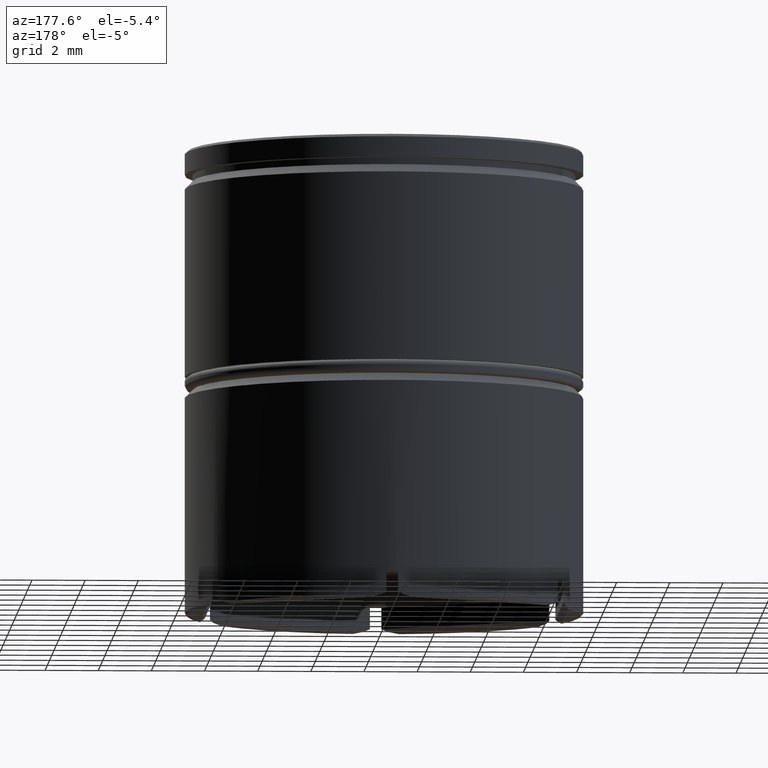
[diagram: clean part render]
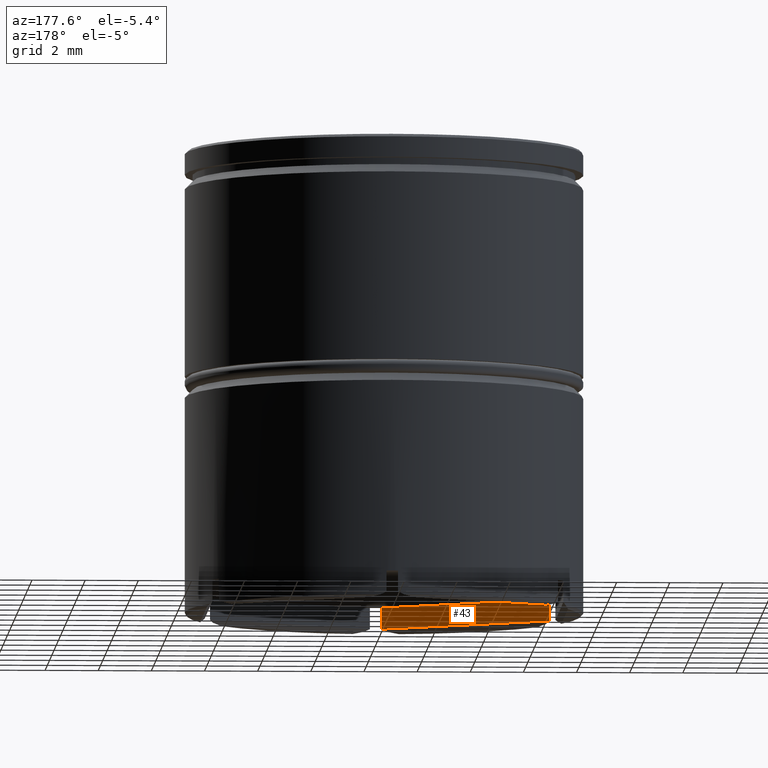
[diagram: same view with one face highlighted and labeled with its STEP entity id]
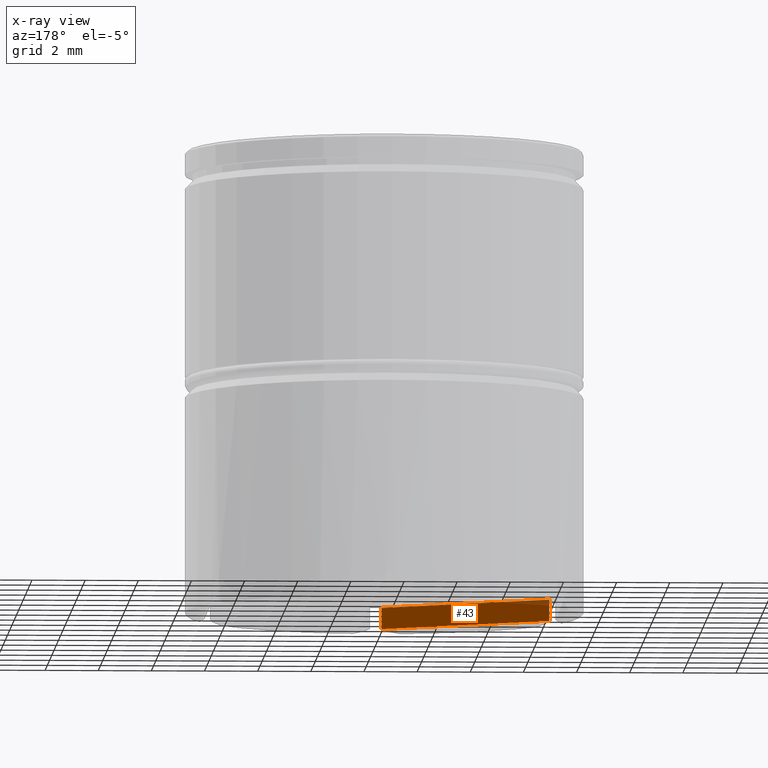
[diagram: x-ray of the same camera — body ghosted, the highlighted face saturated]
A machine part, auxiliary view. The second image highlights one B-rep face of the part: STEP entity #43.
The next image is the same camera in x-ray: the body ghosted, the highlighted face saturated — about 4% of this face is hidden behind the body in this view.
In plain terms, the highlighted planar face has unit normal (-0.5, -0.866, 0).
Its self-contained STEP definition (entity closure, byte-faithful):
#41 = VECTOR ( 'NONE', #565, 1000.000000000000000 ) ;
#43 = ADVANCED_FACE ( 'NONE', ( #1089 ), #50, .F. ) ;
#50 = PLANE ( 'NONE',  #825 ) ;
#85 = EDGE_CURVE ( 'NONE', #1440, #601, #1322, .T. ) ;
#111 = EDGE_CURVE ( 'NONE', #601, #771, #1152, .T. ) ;
#162 = VECTOR ( 'NONE', #762, 1000.000000000000000 ) ;
#178 = CARTESIAN_POINT ( 'NONE',  ( -0.2149554298195403834, -7.496918978032981684, 0.000000000000000000 ) ) ;
#181 = CARTESIAN_POINT ( 'NONE',  ( -4.310144132208485433E-16, -7.621023553303065690, -16.50000000000000000 ) ) ;
#190 = CARTESIAN_POINT ( 'NONE',  ( -0.2149554298195403834, -7.496918978032981684, -16.50000000000000000 ) ) ;
#414 = CARTESIAN_POINT ( 'NONE',  ( -6.198275349237895249, -4.042447611909143923, -17.29999999999999716 ) ) ;
#452 = ORIENTED_EDGE ( 'NONE', *, *, #700, .F. ) ;
#562 = ORIENTED_EDGE ( 'NONE', *, *, #85, .T. ) ;
#565 = DIRECTION ( 'NONE',  ( -0.000000000000000000, -0.000000000000000000, 1.000000000000000000 ) ) ;
#601 = VERTEX_POINT ( 'NONE', #1505 ) ;
#679 = CARTESIAN_POINT ( 'NONE',  ( -4.310144132208485433E-16, -7.621023553303065690, -16.50000000000000000 ) ) ;
#688 = DIRECTION ( 'NONE',  ( 0.8660254037844385966, -0.5000000000000001110, 0.000000000000000000 ) ) ;
#700 = EDGE_CURVE ( 'NONE', #1440, #1528, #1187, .T. ) ;
#762 = DIRECTION ( 'NONE',  ( -0.8660254037844385966, 0.5000000000000001110, 0.000000000000000000 ) ) ;
#771 = VERTEX_POINT ( 'NONE', #813 ) ;
#787 = DIRECTION ( 'NONE',  ( -0.8660254037844385966, 0.5000000000000001110, 0.000000000000000000 ) ) ;
#813 = CARTESIAN_POINT ( 'NONE',  ( -6.385044570180465229, -3.934616351921614186, -17.29999999999999716 ) ) ;
#825 = AXIS2_PLACEMENT_3D ( 'NONE', #679, #1588, #688 ) ;
#886 = VECTOR ( 'NONE', #787, 1000.000000000000000 ) ;
#1086 = EDGE_LOOP ( 'NONE', ( #562, #1580, #1468, #452 ) ) ;
#1089 = FACE_OUTER_BOUND ( 'NONE', #1086, .T. ) ;
#1090 = EDGE_CURVE ( 'NONE', #771, #1528, #1558, .T. ) ;
#1152 = LINE ( 'NONE', #414, #162 ) ;
#1187 = LINE ( 'NONE', #181, #886 ) ;
#1197 = CARTESIAN_POINT ( 'NONE',  ( -6.385044570180465229, -3.934616351921614186, 0.000000000000000000 ) ) ;
#1322 = LINE ( 'NONE', #178, #1401 ) ;
#1401 = VECTOR ( 'NONE', #1480, 1000.000000000000000 ) ;
#1440 = VERTEX_POINT ( 'NONE', #190 ) ;
#1468 = ORIENTED_EDGE ( 'NONE', *, *, #1090, .T. ) ;
#1480 = DIRECTION ( 'NONE',  ( 0.000000000000000000, 0.000000000000000000, -1.000000000000000000 ) ) ;
#1505 = CARTESIAN_POINT ( 'NONE',  ( -0.2149554298195403834, -7.496918978032981684, -17.29999999999999716 ) ) ;
#1528 = VERTEX_POINT ( 'NONE', #1559 ) ;
#1558 = LINE ( 'NONE', #1197, #41 ) ;
#1559 = CARTESIAN_POINT ( 'NONE',  ( -6.385044570180465229, -3.934616351921614186, -16.50000000000000000 ) ) ;
#1580 = ORIENTED_EDGE ( 'NONE', *, *, #111, .T. ) ;
#1588 = DIRECTION ( 'NONE',  ( -0.5000000000000001110, -0.8660254037844385966, 0.000000000000000000 ) ) ;